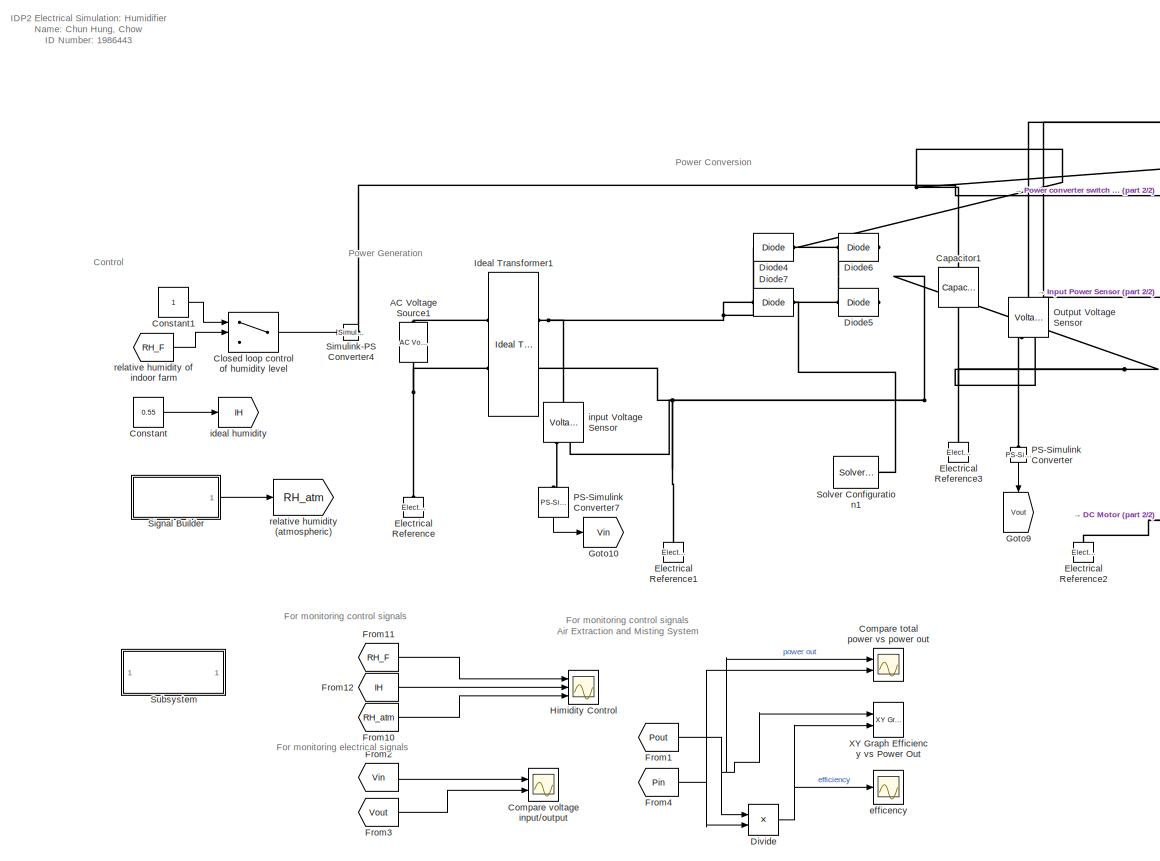
[diagram: root canvas - part 1/2, left side, full height]
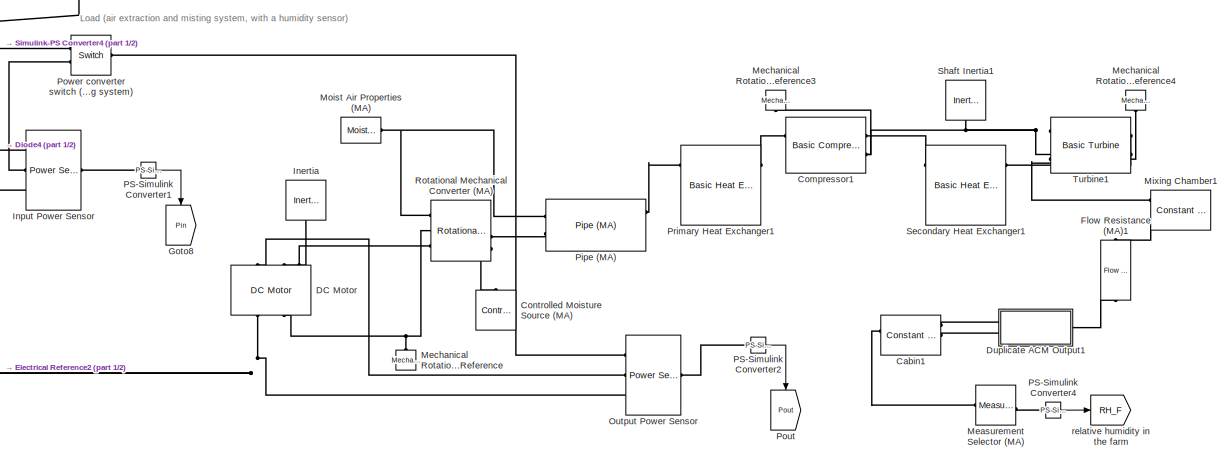
[diagram: root canvas - part 2/2, middle right region]
MODEL slx_8439d1e5cef7
KIND model
CONFIG AbsTol = 1e-3
CONFIG EnableMultiTasking = on
CONFIG FixedStep = auto
CONFIG MaxStep = auto
CONFIG MinStep = auto
CONFIG RelTol = 1e-3
CONFIG SampleTimeConstraint = Unconstrained
CONFIG Solver = VariableStepAuto
CONFIG SolverName = VariableStepAuto
CONFIG StartTime = 0.0
CONFIG StopTime = 10.0
BLOCK [Reference] AC Voltage Source1  REF=fl_lib/Electrical/Electrical Sources/AC Voltage Source
  Ports = [0, 0, 0, 0, 0, 1, 1]
  SourceBlock = fl_lib/Electrical/Electrical Sources/AC Voltage Source
  SourceProductBaseCode = SS
  SourceProductName = Simscape
  SourceType = AC Voltage Source
BLOCK [Reference] Cabin1  REF=fl_lib/Moist Air/Elements/Constant Volume
Chamber (MA)
  Ports = [0, 0, 0, 0, 0, 3, 4]
  SourceBlock = fl_lib/Moist Air/Elements/Constant Volume\nChamber (MA)
  SourceProductBaseCode = SS
  SourceProductName = Simscape
  SourceType = Constant Volume\nChamber (MA)
BLOCK [Reference] Capacitor1  REF=fl_lib/Electrical/Electrical Elements/Capacitor
  Ports = [0, 0, 0, 0, 0, 1, 1]
  SourceBlock = fl_lib/Electrical/Electrical Elements/Capacitor
  SourceProductBaseCode = SS
  SourceProductName = Simscape
  SourceType = Capacitor
BLOCK [Switch] Closed loop control of humidity level
  InputSameDT = off
  SaturateOnIntegerOverflow = off
  Threshold = 60
BLOCK [Scope] Compare total power vs power out
  Floating = off
  NumInputPorts = 2
  Ports = [2]
  ScopeSpecificationString = Simulink.scopes.TimeScopeBlockCfg('CurrentConfiguration', extmgr.ConfigurationSet(extmgr.Configuration('Core','General UI',true),extmgr.Configuration('Core','Source UI',true),extmgr.Configuration('Sources','WiredSimulink',true),extmgr.Configuration('Visuals','Time Domain',true,'SerializedDisplays',{struct('MinYLimReal','-0.00000000000000000000000000012','MaxYLimReal','0.000000000000000000000000000...<+1704ch>
BLOCK [Scope] Compare voltage input//output
  Floating = off
  NumInputPorts = 2
  Ports = [2]
  ScopeSpecificationString = Simulink.scopes.TimeScopeBlockCfg('CurrentConfiguration', extmgr.ConfigurationSet(extmgr.Configuration('Core','General UI',true),extmgr.Configuration('Core','Source UI',true),extmgr.Configuration('Sources','WiredSimulink',true,'DataLoggingVariableName','ScopeData1'),extmgr.Configuration('Visuals','Time Domain',true,'SerializedDisplays',{struct('MinYLimReal','-0.00000000009','MaxYLimReal','0.000000...<+1551ch>
BLOCK [Reference] Compressor1  REF=HVAC_lib/Basic Compressor
  Ports = [0, 0, 0, 0, 0, 2, 2]
  SourceBlock = HVAC_lib/Basic Compressor
  SourceProductBaseCode = SS
  SourceProductName = Simscape
  SourceType = Basic Compressor
BLOCK [Constant] Constant
  Value = 0.55
BLOCK [Constant] Constant1
BLOCK [Reference] Controlled Moisture Source (MA)  REF=fl_lib/Moist Air/Sources/Moisture & Trace Gas
Sources/Controlled Moisture
Source (MA)
  Ports = [0, 0, 0, 0, 0, 1, 2]
  SourceBlock = fl_lib/Moist Air/Sources/Moisture & Trace Gas\nSources/Controlled Moisture\nSource (MA)
  SourceProductBaseCode = SS
  SourceProductName = Simscape
  SourceType = Controlled Moisture\nSource (MA)
BLOCK [Reference] DC Motor  REF=ee_lib/Electromechanical/Brushed Motors/DC Motor
  Ports = [0, 0, 0, 0, 0, 2, 2]
  SourceBlock = ee_lib/Electromechanical/Brushed Motors/DC Motor
  SourceProductBaseCode = PS
  SourceProductName = Simscape Electrical
  SourceType = DC Motor
BLOCK [Reference] Diode4  REF=ee_lib/Semiconductors &
Converters/Diode
  Ports = [0, 0, 0, 0, 0, 1, 1]
  SourceBlock = ee_lib/Semiconductors &\nConverters/Diode
  SourceProductBaseCode = PS
  SourceProductName = Simscape Electrical
  SourceType = Diode
BLOCK [Reference] Diode5  REF=ee_lib/Semiconductors &
Converters/Diode
  Ports = [0, 0, 0, 0, 0, 1, 1]
  SourceBlock = ee_lib/Semiconductors &\nConverters/Diode
  SourceProductBaseCode = PS
  SourceProductName = Simscape Electrical
  SourceType = Diode
BLOCK [Reference] Diode6  REF=ee_lib/Semiconductors &
Converters/Diode
  Ports = [0, 0, 0, 0, 0, 1, 1]
  SourceBlock = ee_lib/Semiconductors &\nConverters/Diode
  SourceProductBaseCode = PS
  SourceProductName = Simscape Electrical
  SourceType = Diode
BLOCK [Reference] Diode7  REF=ee_lib/Semiconductors &
Converters/Diode
  Ports = [0, 0, 0, 0, 0, 1, 1]
  SourceBlock = ee_lib/Semiconductors &\nConverters/Diode
  SourceProductBaseCode = PS
  SourceProductName = Simscape Electrical
  SourceType = Diode
BLOCK [Product] Divide
  InputSameDT = off
  Inputs = */
  OutDataTypeStr = Inherit: Inherit via internal rule
  Ports = [2, 1]
  RndMeth = Floor
  SaturateOnIntegerOverflow = off
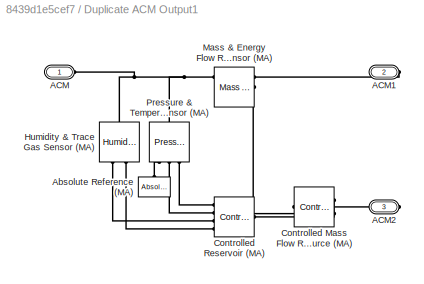
BLOCK [SubSystem] Duplicate ACM Output1
  Ports = [0, 0, 0, 0, 0, 1, 2]
  RequestExecContextInheritance = off
BLOCK [PMIOPort] Duplicate ACM Output1/ACM
  Side = Left
BLOCK [PMIOPort] Duplicate ACM Output1/ACM1
  Port = 2
  Side = Right
BLOCK [PMIOPort] Duplicate ACM Output1/ACM2
  Port = 3
  Side = Right
BLOCK [Reference] Duplicate ACM Output1/Absolute Reference (MA)  REF=fl_lib/Moist Air/Elements/Absolute Reference
(MA)
  Ports = [0, 0, 0, 0, 0, 1]
  SourceBlock = fl_lib/Moist Air/Elements/Absolute Reference\n(MA)
  SourceProductBaseCode = SS
  SourceProductName = Simscape
  SourceType = Absolute Reference\n(MA)
BLOCK [Reference] Duplicate ACM Output1/Controlled Mass Flow Rate Source (MA)  REF=fl_lib/Moist Air/Sources/Controlled Mass Flow
Rate Source (MA)
  Ports = [0, 0, 0, 0, 0, 2, 1]
  SourceBlock = fl_lib/Moist Air/Sources/Controlled Mass Flow\nRate Source (MA)
  SourceProductBaseCode = SS
  SourceProductName = Simscape
  SourceType = Controlled Mass Flow\nRate Source (MA)
BLOCK [Reference] Duplicate ACM Output1/Controlled Reservoir (MA)  REF=fl_lib/Moist Air/Elements/Controlled Reservoir
(MA)
  Ports = [0, 0, 0, 0, 0, 1, 4]
  SourceBlock = fl_lib/Moist Air/Elements/Controlled Reservoir\n(MA)
  SourceProductBaseCode = SS
  SourceProductName = Simscape
  SourceType = Controlled Reservoir\n(MA)
BLOCK [Reference] Duplicate ACM Output1/Humidity & Trace Gas Sensor (MA)  REF=fl_lib/Moist Air/Sensors/Humidity & Trace Gas
Sensor (MA)
  Ports = [0, 0, 0, 0, 0, 1, 2]
  SourceBlock = fl_lib/Moist Air/Sensors/Humidity & Trace Gas\nSensor (MA)
  SourceProductBaseCode = SS
  SourceProductName = Simscape
  SourceType = Humidity & Trace Gas\nSensor (MA)
BLOCK [Reference] Duplicate ACM Output1/Mass & Energy Flow Rate Sensor (MA)  REF=fl_lib/Moist Air/Sensors/Mass & Energy Flow
Rate Sensor (MA)
  Ports = [0, 0, 0, 0, 0, 3, 3]
  SourceBlock = fl_lib/Moist Air/Sensors/Mass & Energy Flow\nRate Sensor (MA)
  SourceProductBaseCode = SS
  SourceProductName = Simscape
  SourceType = Mass & Energy Flow\nRate Sensor (MA)
BLOCK [Reference] Duplicate ACM Output1/Pressure & Temperature Sensor (MA)  REF=fl_lib/Moist Air/Sensors/Pressure &
Temperature Sensor
(MA)
  Ports = [0, 0, 0, 0, 0, 1, 3]
  SourceBlock = fl_lib/Moist Air/Sensors/Pressure &\nTemperature Sensor\n(MA)
  SourceProductBaseCode = SS
  SourceProductName = Simscape
  SourceType = Pressure &\nTemperature Sensor\n(MA)
BLOCK [Reference] Electrical Reference  REF=fl_lib/Electrical/Electrical Elements/Electrical Reference
  Ports = [0, 0, 0, 0, 0, 1]
  SourceBlock = fl_lib/Electrical/Electrical Elements/Electrical Reference
  SourceProductBaseCode = SS
  SourceProductName = Simscape
  SourceType = Electrical Reference
BLOCK [Reference] Electrical Reference1  REF=fl_lib/Electrical/Electrical Elements/Electrical Reference
  Ports = [0, 0, 0, 0, 0, 1]
  SourceBlock = fl_lib/Electrical/Electrical Elements/Electrical Reference
  SourceProductBaseCode = SS
  SourceProductName = Simscape
  SourceType = Electrical Reference
BLOCK [Reference] Electrical Reference2  REF=fl_lib/Electrical/Electrical Elements/Electrical Reference
  Ports = [0, 0, 0, 0, 0, 1]
  SourceBlock = fl_lib/Electrical/Electrical Elements/Electrical Reference
  SourceProductBaseCode = SS
  SourceProductName = Simscape
  SourceType = Electrical Reference
BLOCK [Reference] Electrical Reference3  REF=fl_lib/Electrical/Electrical Elements/Electrical Reference
  Ports = [0, 0, 0, 0, 0, 1]
  SourceBlock = fl_lib/Electrical/Electrical Elements/Electrical Reference
  SourceProductBaseCode = SS
  SourceProductName = Simscape
  SourceType = Electrical Reference
BLOCK [Reference] Flow Resistance (MA)1  REF=fl_lib/Moist Air/Elements/Flow Resistance (MA)
  Ports = [0, 0, 0, 0, 0, 1, 1]
  SourceBlock = fl_lib/Moist Air/Elements/Flow Resistance (MA)
  SourceProductBaseCode = SS
  SourceProductName = Simscape
  SourceType = Flow Resistance (MA)
BLOCK [From] From1
  GotoTag = Pout
BLOCK [From] From10
  GotoTag = RH_atm
BLOCK [From] From11
  GotoTag = RH_F
BLOCK [From] From12
  GotoTag = IH
BLOCK [From] From2
  GotoTag = Vin
BLOCK [From] From3
  GotoTag = Vout
BLOCK [From] From4
  GotoTag = Pin
BLOCK [Goto] Goto10
  GotoTag = Vin
BLOCK [Goto] Goto8
  GotoTag = Pin
BLOCK [Goto] Goto9
  GotoTag = Vout
BLOCK [Scope] Himidity Control
  Floating = off
  NumInputPorts = 3
  Ports = [3]
  ScopeSpecificationString = Simulink.scopes.TimeScopeBlockCfg('CurrentConfiguration', extmgr.ConfigurationSet(extmgr.Configuration('Core','General UI',true),extmgr.Configuration('Core','Source UI',true),extmgr.Configuration('Sources','WiredSimulink',true,'DataLoggingVariableName','ScopeData4'),extmgr.Configuration('Visuals','Time Domain',true,'SerializedDisplays',{struct('MinYLimReal','0.4715','MaxYLimReal','0.7565','YLabelR...<+1630ch>
BLOCK [Reference] Ideal Transformer1  REF=fl_lib/Electrical/Electrical Elements/Ideal Transformer
  Ports = [0, 0, 0, 0, 0, 2, 2]
  SourceBlock = fl_lib/Electrical/Electrical Elements/Ideal Transformer
  SourceProductBaseCode = SS
  SourceProductName = Simscape
  SourceType = Ideal Transformer
BLOCK [Reference] Inertia  REF=fl_lib/Mechanical/Rotational Elements/Inertia
  Ports = [0, 0, 0, 0, 0, 1]
  SourceBlock = fl_lib/Mechanical/Rotational Elements/Inertia
  SourceProductBaseCode = SS
  SourceProductName = Simscape
  SourceType = Inertia
BLOCK [Reference] Input Power Sensor  REF=ee_lib/Sensors &
Transducers/Power Sensor
  Ports = [0, 0, 0, 0, 0, 3, 1]
  SourceBlock = ee_lib/Sensors &\nTransducers/Power Sensor
  SourceProductBaseCode = PS
  SourceProductName = Simscape Electrical
  SourceType = Power Sensor
BLOCK [Reference] Measurement Selector (MA)  REF=fl_lib/Moist Air/Sensors/Measurement Selector
(MA)
  Ports = [0, 0, 0, 0, 0, 1, 4]
  SourceBlock = fl_lib/Moist Air/Sensors/Measurement Selector\n(MA)
  SourceProductBaseCode = SS
  SourceProductName = Simscape
  SourceType = Measurement Selector\n(MA)
BLOCK [Reference] Mechanical Rotational Reference  REF=fl_lib/Mechanical/Rotational Elements/Mechanical
Rotational Reference
  Ports = [0, 0, 0, 0, 0, 1]
  SourceBlock = fl_lib/Mechanical/Rotational Elements/Mechanical\nRotational Reference
  SourceProductBaseCode = SS
  SourceProductName = Simscape
  SourceType = Mechanical\nRotational Reference
BLOCK [Reference] Mechanical Rotational Reference3  REF=fl_lib/Mechanical/Rotational Elements/Mechanical
Rotational Reference
  Ports = [0, 0, 0, 0, 0, 1]
  SourceBlock = fl_lib/Mechanical/Rotational Elements/Mechanical\nRotational Reference
  SourceProductBaseCode = SS
  SourceProductName = Simscape
  SourceType = Mechanical\nRotational Reference
BLOCK [Reference] Mechanical Rotational Reference4  REF=fl_lib/Mechanical/Rotational Elements/Mechanical
Rotational Reference
  Ports = [0, 0, 0, 0, 0, 1]
  SourceBlock = fl_lib/Mechanical/Rotational Elements/Mechanical\nRotational Reference
  SourceProductBaseCode = SS
  SourceProductName = Simscape
  SourceType = Mechanical\nRotational Reference
BLOCK [Reference] Mixing Chamber1  REF=fl_lib/Moist Air/Elements/Constant Volume
Chamber (MA)
  Ports = [0, 0, 0, 0, 0, 3, 3]
  SourceBlock = fl_lib/Moist Air/Elements/Constant Volume\nChamber (MA)
  SourceProductBaseCode = SS
  SourceProductName = Simscape
  SourceType = Constant Volume\nChamber (MA)
BLOCK [Reference] Moist Air Properties (MA)  REF=fl_lib/Moist Air/Utilities/Moist Air Properties
(MA)
  Ports = [0, 0, 0, 0, 0, 0, 1]
  SourceBlock = fl_lib/Moist Air/Utilities/Moist Air Properties\n(MA)
  SourceProductBaseCode = SS
  SourceProductName = Simscape
  SourceType = Moist Air Properties\n(MA)
BLOCK [Reference] Output Power Sensor   REF=ee_lib/Sensors &
Transducers/Power Sensor
  Ports = [0, 0, 0, 0, 0, 3, 1]
  SourceBlock = ee_lib/Sensors &\nTransducers/Power Sensor
  SourceProductBaseCode = PS
  SourceProductName = Simscape Electrical
  SourceType = Power Sensor
BLOCK [Reference] Output Voltage Sensor  REF=fl_lib/Electrical/Electrical Sensors/Voltage Sensor
  Ports = [0, 0, 0, 0, 0, 1, 2]
  SourceBlock = fl_lib/Electrical/Electrical Sensors/Voltage Sensor
  SourceProductBaseCode = SS
  SourceProductName = Simscape
  SourceType = Voltage Sensor
BLOCK [Reference] PS-Simulink Converter  REF=nesl_utility/PS-Simulink
Converter
  Ports = [0, 1, 0, 0, 0, 1]
  SourceBlock = nesl_utility/PS-Simulink\nConverter
  SourceProductBaseCode = SS
  SourceProductName = Simscape
  SourceType = PS-Simulink\nConverter
BLOCK [Reference] PS-Simulink Converter1  REF=nesl_utility/PS-Simulink
Converter
  Ports = [0, 1, 0, 0, 0, 1]
  SourceBlock = nesl_utility/PS-Simulink\nConverter
  SourceProductBaseCode = SS
  SourceProductName = Simscape
  SourceType = PS-Simulink\nConverter
BLOCK [Reference] PS-Simulink Converter2  REF=nesl_utility/PS-Simulink
Converter
  Ports = [0, 1, 0, 0, 0, 1]
  SourceBlock = nesl_utility/PS-Simulink\nConverter
  SourceProductBaseCode = SS
  SourceProductName = Simscape
  SourceType = PS-Simulink\nConverter
BLOCK [Reference] PS-Simulink Converter4  REF=nesl_utility/PS-Simulink
Converter
  Ports = [0, 1, 0, 0, 0, 1]
  SourceBlock = nesl_utility/PS-Simulink\nConverter
  SourceProductBaseCode = SS
  SourceProductName = Simscape
  SourceType = PS-Simulink\nConverter
BLOCK [Reference] PS-Simulink Converter7  REF=nesl_utility/PS-Simulink
Converter
  Ports = [0, 1, 0, 0, 0, 1]
  SourceBlock = nesl_utility/PS-Simulink\nConverter
  SourceProductBaseCode = SS
  SourceProductName = Simscape
  SourceType = PS-Simulink\nConverter
BLOCK [Reference] Pipe (MA)  REF=fl_lib/Moist Air/Elements/Pipe (MA)
  Ports = [0, 0, 0, 0, 0, 2, 3]
  SourceBlock = fl_lib/Moist Air/Elements/Pipe (MA)
  SourceProductBaseCode = SS
  SourceProductName = Simscape
  SourceType = Pipe (MA)
BLOCK [Goto] Pout
  GotoTag = Pout
BLOCK [Reference] Power converter switch (air extraction and misting system)  REF=fl_lib/Electrical/Electrical Elements/Switch
  Ports = [0, 0, 0, 0, 0, 1, 2]
  SourceBlock = fl_lib/Electrical/Electrical Elements/Switch
  SourceProductBaseCode = SS
  SourceProductName = Simscape
  SourceType = Switch
BLOCK [Reference] Primary Heat Exchanger1  REF=HVAC_lib/Basic Heat Exchanger
  Ports = [0, 0, 0, 0, 0, 3, 3]
  SourceBlock = HVAC_lib/Basic Heat Exchanger
  SourceProductBaseCode = SS
  SourceProductName = Simscape
  SourceType = Basic Heat Exchanger
BLOCK [Reference] Rotational Mechanical Converter (MA)  REF=fl_lib/Moist Air/Elements/Rotational
Mechanical Converter
(MA)
  Ports = [0, 0, 0, 0, 0, 3, 4]
  SourceBlock = fl_lib/Moist Air/Elements/Rotational\nMechanical Converter\n(MA)
  SourceProductBaseCode = SS
  SourceProductName = Simscape
  SourceType = Rotational\nMechanical Converter\n(MA)
BLOCK [Reference] Secondary Heat Exchanger1  REF=HVAC_lib/Basic Heat Exchanger
  Ports = [0, 0, 0, 0, 0, 3, 3]
  SourceBlock = HVAC_lib/Basic Heat Exchanger
  SourceProductBaseCode = SS
  SourceProductName = Simscape
  SourceType = Basic Heat Exchanger
BLOCK [Reference] Shaft Inertia1  REF=fl_lib/Mechanical/Rotational Elements/Inertia
  Ports = [0, 0, 0, 0, 0, 1]
  SourceBlock = fl_lib/Mechanical/Rotational Elements/Inertia
  SourceProductBaseCode = SS
  SourceProductName = Simscape
  SourceType = Inertia
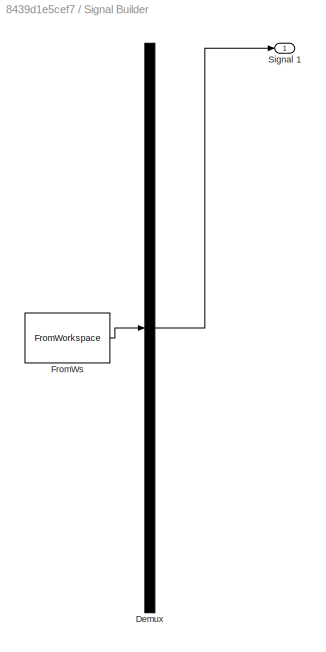
BLOCK [SubSystem] Signal Builder
  ClipboardFcn = sigbuilder_block('clipboard');
  CloseFcn = sigbuilder_block('close');
  ContinueFcn = sigbuilder_block('continue');
  CopyFcn = sigbuilder_block('copy');
  DeleteFcn = sigbuilder_block('delete');
  LoadFcn = sigbuilder_block('load');
  MaskHideContents = on
  ModelCloseFcn = sigbuilder_block('modelClose');
  NameChangeFcn = sigbuilder_block('namechange');
  OpenFcn = sigbuilder_block('open',[437.6 199.2 550.4 400 ]);
  PauseFcn = sigbuilder_block('pause');
  Ports = [0, 1]
  PreSaveFcn = sigbuilder_block('preSave');
  RequestExecContextInheritance = off
  StartFcn = sigbuilder_block('start');
  StopFcn = sigbuilder_block('stop');
  Tag = STV Subsys
BLOCK [Demux] Signal Builder/Demux
  Outputs = 1
  Ports = [1, 1]
  Tag = STV Demux
BLOCK [FromWorkspace] Signal Builder/FromWs
  SampleTime = 0
  Tag = STV FromWs
  VariableName = tuvar
  ZeroCross = on
BLOCK [Outport] Signal Builder/Signal 1
  IconDisplay = Port number
  Tag = STV Outport
BLOCK [Reference] Simulink-PS Converter4  REF=nesl_utility/Simulink-PS
Converter
  Ports = [1, 0, 0, 0, 0, 0, 1]
  SourceBlock = nesl_utility/Simulink-PS\nConverter
  SourceProductBaseCode = SS
  SourceProductName = Simscape
  SourceType = Simulink-PS\nConverter
BLOCK [Reference] Solver Configuration1  REF=nesl_utility/Solver
Configuration
  Ports = [0, 0, 0, 0, 0, 0, 1]
  SourceBlock = nesl_utility/Solver\nConfiguration
  SourceProductBaseCode = SS
  SourceProductName = Simscape
  SourceType = Solver\nConfiguration
BLOCK [SubSystem] Subsystem
  OpenFcn = open_system('simscape')
  Ports = []
  RequestExecContextInheritance = off
  ShowPortLabels = none
BLOCK [Reference] Turbine1  REF=HVAC_lib/Basic Turbine
  Ports = [0, 0, 0, 0, 0, 2, 3]
  SourceBlock = HVAC_lib/Basic Turbine
  SourceProductBaseCode = SS
  SourceProductName = Simscape
  SourceType = Basic Turbine
BLOCK [Reference] XY Graph Efficiency vs Power Out  REF=simulink/Sinks/XY Graph
  Ports = [2]
  SourceBlock = simulink/Sinks/XY Graph
  SourceProductBaseCode = SL
  SourceProductName = Simulink
  SourceType = XY scope.
BLOCK [Scope] efficency
  Floating = off
  NumInputPorts = 1
  Ports = [1]
  ScopeSpecificationString = Simulink.scopes.TimeScopeBlockCfg('CurrentConfiguration', extmgr.ConfigurationSet(extmgr.Configuration('Core','General UI',true),extmgr.Configuration('Core','Source UI',true),extmgr.Configuration('Sources','WiredSimulink',true,'DataLoggingVariableName','ScopeData3'),extmgr.Configuration('Visuals','Time Domain',true,'SerializedDisplays',{struct('MinYLimReal','0.61398','MaxYLimReal','0.70266','YLabe...<+1498ch>
BLOCK [Goto] ideal humidity
  GotoTag = IH
BLOCK [Reference] input Voltage Sensor  REF=fl_lib/Electrical/Electrical Sensors/Voltage Sensor
  Ports = [0, 0, 0, 0, 0, 1, 2]
  SourceBlock = fl_lib/Electrical/Electrical Sensors/Voltage Sensor
  SourceProductBaseCode = SS
  SourceProductName = Simscape
  SourceType = Voltage Sensor
BLOCK [Goto] relative humidity (atmospheric)
  GotoTag = RH_atm
BLOCK [Goto] relative humidity in the farm
  GotoTag = RH_F
BLOCK [From] relative humidity of indoor farm
  GotoTag = RH_F
ANNOTATION (root): IDP2 Electrical Simulation: Humidifier Name: Chun Hung, Chow ID Number: 1986443
ANNOTATION (root): Control
ANNOTATION (root): For monitoring control signals
ANNOTATION (root): For monitoring control signals Air Extraction and Misting System
ANNOTATION (root): For monitoring electrical signals
ANNOTATION (root): Load (air extraction and misting system, with a humidity sensor)
ANNOTATION (root): Power Conversion
ANNOTATION (root): Power Generation
LINE Closed loop control of humidity level:1 -> Simulink-PS Converter4:1
LINE Constant1:1 -> Closed loop control of humidity level:1
LINE Constant:1 -> ideal humidity:1
NET Divide:1 -> XY Graph Efficiency vs Power Out:2, efficency:1
LINE From10:1 -> Himidity Control:3
LINE From11:1 -> Himidity Control:1
LINE From12:1 -> Himidity Control:2
NET From1:1 -> Compare total power vs power out:1, Divide:1, XY Graph Efficiency vs Power Out:1
LINE From2:1 -> Compare voltage input//output:1
LINE From3:1 -> Compare voltage input//output:2
NET From4:1 -> Compare total power vs power out:2, Divide:2
LINE PS-Simulink Converter1:1 -> Goto8:1
LINE PS-Simulink Converter2:1 -> Pout:1
LINE PS-Simulink Converter4:1 -> relative humidity in the farm:1
LINE PS-Simulink Converter7:1 -> Goto10:1
LINE PS-Simulink Converter:1 -> Goto9:1
LINE Signal Builder:1 -> relative humidity (atmospheric):1
LINE relative humidity of indoor farm:1 -> Closed loop control of humidity level:2
PLINE AC Voltage Source1:LConn1 -- Ideal Transformer1:LConn1
PNET net1: AC Voltage Source1:RConn1 -- Electrical Reference:LConn1 -- Ideal Transformer1:LConn2
PLINE Cabin1:LConn1 -- Duplicate ACM Output1:RConn1
PLINE Cabin1:LConn2 -- Duplicate ACM Output1:RConn2
PLINE Cabin1:RConn2 -- Measurement Selector (MA):LConn1
PNET net2: Capacitor1:LConn1 -- Diode4:RConn1 -- Diode6:RConn1 -- Input Power Sensor:LConn1 -- Output Voltage Sensor:LConn1
PNET net3: Capacitor1:RConn1 -- Diode5:RConn1 -- Diode6:LConn1 -- Electrical Reference1:LConn1 -- Electrical Reference3:LConn1 -- Ideal Transformer1:RConn2 -- Output Voltage Sensor:RConn2 -- input Voltage Sensor:RConn2
PLINE Compressor1:LConn1 -- Primary Heat Exchanger1:RConn1
PLINE Compressor1:LConn2 -- Mechanical Rotational Reference3:LConn1
PLINE Compressor1:RConn1 -- Secondary Heat Exchanger1:LConn1
PNET net4: Compressor1:RConn2 -- Shaft Inertia1:LConn1 -- Turbine1:LConn2
PLINE Controlled Moisture Source (MA):LConn1 -- Rotational Mechanical Converter (MA):RConn4
PLINE DC Motor:LConn1 -- Output Power Sensor :LConn2
PNET net5: DC Motor:LConn2 -- Inertia:LConn1 -- Rotational Mechanical Converter (MA):LConn3
PNET net6: DC Motor:RConn1 -- Electrical Reference2:LConn1 -- Input Power Sensor:LConn3 -- Output Power Sensor :LConn3
PNET net7: DC Motor:RConn2 -- Mechanical Rotational Reference:LConn1 -- Rotational Mechanical Converter (MA):LConn2
PNET net8: Diode4:LConn1 -- Diode7:RConn1 -- Ideal Transformer1:RConn1 -- input Voltage Sensor:LConn1
PNET net9: Diode5:LConn1 -- Diode7:LConn1 -- Solver Configuration1:RConn1
PLINE Duplicate ACM Output1/ACM1:RConn1 -- Duplicate ACM Output1/Mass & Energy Flow Rate Sensor (MA):RConn1
PLINE Duplicate ACM Output1/ACM2:RConn1 -- Duplicate ACM Output1/Controlled Mass Flow Rate Source (MA):RConn1
PNET net10: Duplicate ACM Output1/ACM:RConn1 -- Duplicate ACM Output1/Humidity & Trace Gas Sensor (MA):LConn1 -- Duplicate ACM Output1/Mass & Energy Flow Rate Sensor (MA):LConn1 -- Duplicate ACM Output1/Pressure & Temperature Sensor (MA):LConn1
PLINE Duplicate ACM Output1/Absolute Reference (MA):LConn1 -- Duplicate ACM Output1/Pressure & Temperature Sensor (MA):RConn1
PLINE Duplicate ACM Output1/Controlled Mass Flow Rate Source (MA):LConn1 -- Duplicate ACM Output1/Controlled Reservoir (MA):LConn1
PLINE Duplicate ACM Output1/Controlled Mass Flow Rate Source (MA):LConn2 -- Duplicate ACM Output1/Mass & Energy Flow Rate Sensor (MA):RConn2
PLINE Duplicate ACM Output1/Controlled Reservoir (MA):RConn1 -- Duplicate ACM Output1/Pressure & Temperature Sensor (MA):RConn3
PLINE Duplicate ACM Output1/Controlled Reservoir (MA):RConn2 -- Duplicate ACM Output1/Pressure & Temperature Sensor (MA):RConn2
PLINE Duplicate ACM Output1/Controlled Reservoir (MA):RConn3 -- Duplicate ACM Output1/Humidity & Trace Gas Sensor (MA):RConn1
PLINE Duplicate ACM Output1/Controlled Reservoir (MA):RConn4 -- Duplicate ACM Output1/Humidity & Trace Gas Sensor (MA):RConn2
PLINE Duplicate ACM Output1:LConn1 -- Flow Resistance (MA)1:RConn1
PLINE Flow Resistance (MA)1:LConn1 -- Mixing Chamber1:LConn3
PLINE Input Power Sensor:LConn2 -- Power converter switch (air extraction and misting system):RConn2
PLINE Input Power Sensor:RConn1 -- PS-Simulink Converter1:LConn1
PLINE Measurement Selector (MA):RConn3 -- PS-Simulink Converter4:LConn1
PLINE Mechanical Rotational Reference4:LConn1 -- Turbine1:RConn3
PLINE Mixing Chamber1:LConn1 -- Turbine1:RConn1
PNET net11: Moist Air Properties (MA):RConn1 -- Pipe (MA):LConn1 -- Rotational Mechanical Converter (MA):LConn1
PLINE Output Power Sensor :LConn1 -- Power converter switch (air extraction and misting system):LConn1
PLINE Output Power Sensor :RConn1 -- PS-Simulink Converter2:LConn1
PLINE Output Voltage Sensor:RConn1 -- PS-Simulink Converter:LConn1
PLINE PS-Simulink Converter7:LConn1 -- input Voltage Sensor:RConn1
PLINE Pipe (MA):LConn2 -- Rotational Mechanical Converter (MA):RConn3
PLINE Pipe (MA):RConn1 -- Primary Heat Exchanger1:LConn1
PLINE Power converter switch (air extraction and misting system):RConn1 -- Simulink-PS Converter4:RConn1
PLINE Secondary Heat Exchanger1:RConn1 -- Turbine1:LConn1
note: NET lines group one-source signal fan-out (src -> all destinations, sorted); 1:1 wires keep LINE; PNET lines group multi-terminal physical nets as a canonical sorted terminal list (undirected conserving connections); 2-terminal nets keep the pairwise PLINE form
